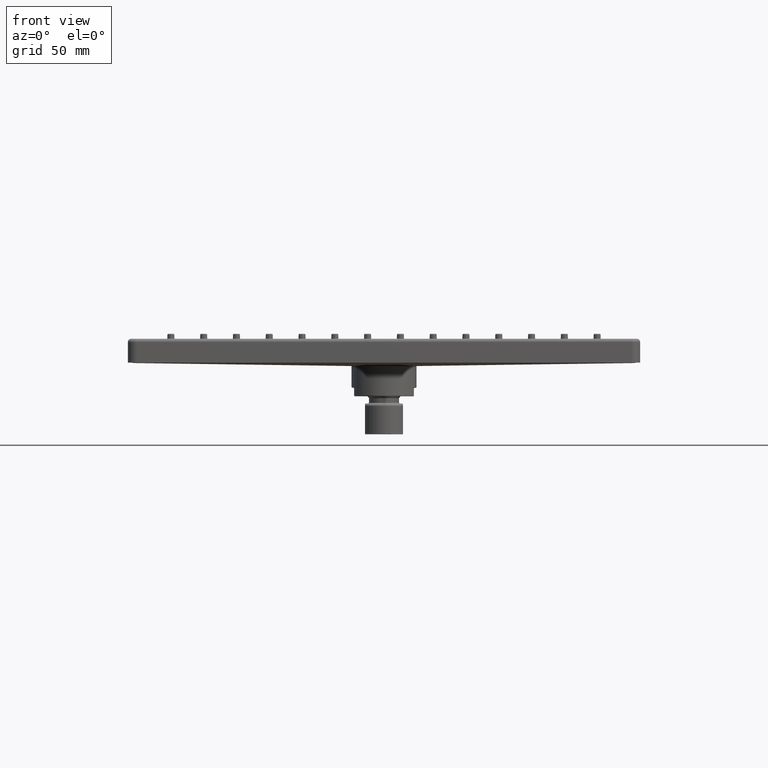
[diagram: clean part render]
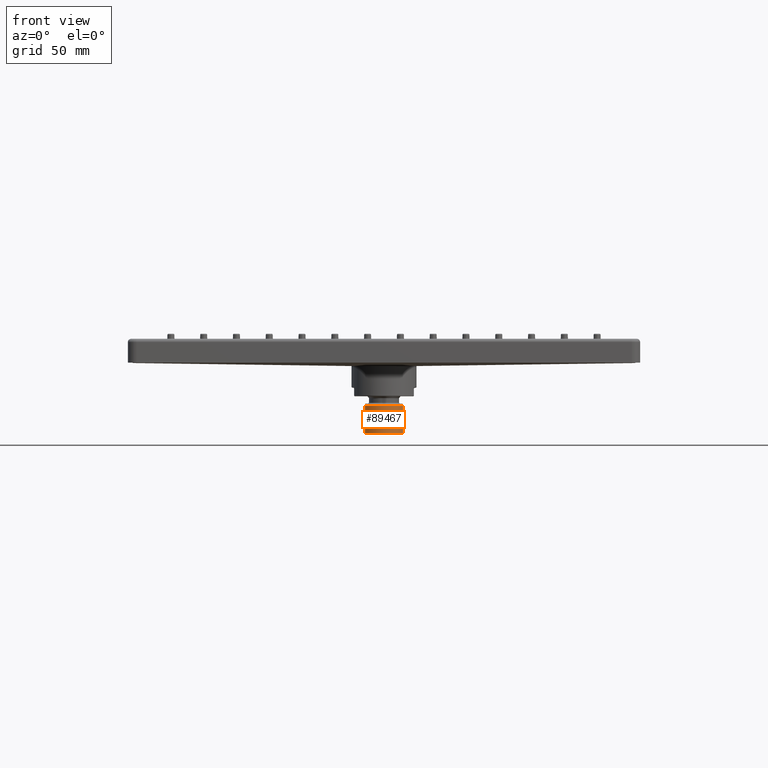
[diagram: same view with one face highlighted and labeled with its STEP entity id]
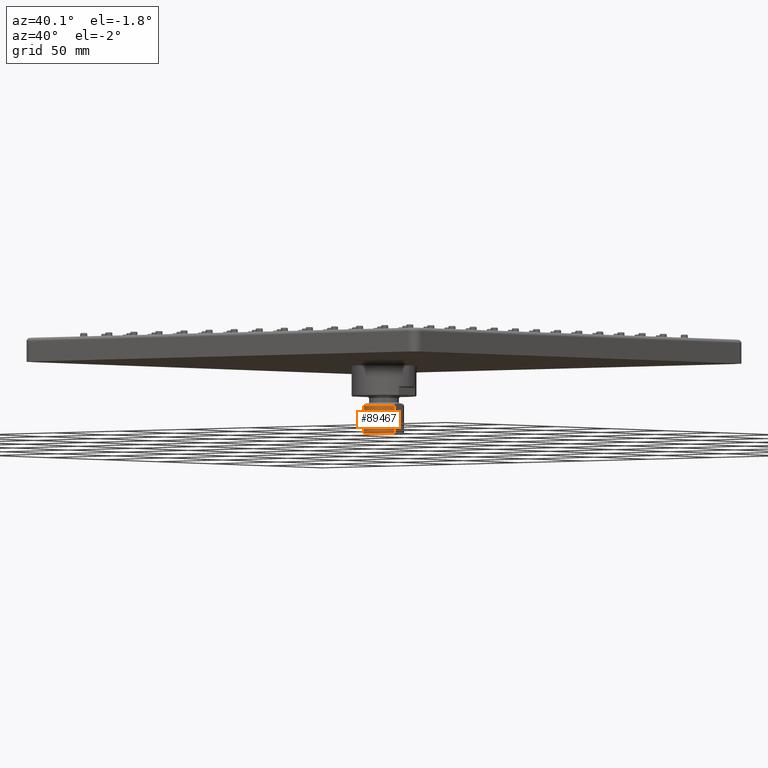
[diagram: same view with one face highlighted and labeled with its STEP entity id]
A machine part, front view. The second image highlights one B-rep face of the part: STEP entity #89467.
A second angle (auxiliary view) of the same face is appended — the face is thin or edge-on in the first view.
In plain terms, the highlighted cylindrical surface (edge-blend (fillet) strip) has radius 11.8 mm, axis along (0, 0, 1).
Its self-contained STEP definition (entity closure, byte-faithful):
#86739=CARTESIAN_POINT('',(0.E0,1.176976377953E0,0.E0));
#86740=DIRECTION('',(0.E0,-1.E0,0.E0));
#86741=DIRECTION('',(-9.406779661017E-1,0.E0,-3.393006986300E-1));
#86742=AXIS2_PLACEMENT_3D('',#86739,#86740,#86741);
#86764=DIRECTION('',(0.E0,-1.E0,0.E0));
#86765=VECTOR('',#86764,6.366614173228E-1);
#86766=CARTESIAN_POINT('',(-4.370078740157E-1,1.176976377953E0,
-1.576278836155E-1));
#86767=LINE('',#86766,#86765);
#86768=DIRECTION('',(0.E0,1.E0,0.E0));
#86769=VECTOR('',#86768,6.366614173228E-1);
#86770=CARTESIAN_POINT('',(4.370078740157E-1,5.403149606299E-1,
-1.576278836155E-1));
#86771=LINE('',#86770,#86769);
#86847=CARTESIAN_POINT('',(4.370078740157E-1,1.176976377953E0,
-1.576278836155E-1));
#86849=CARTESIAN_POINT('',(4.370078740157E-1,5.403149606299E-1,
-1.576278836155E-1));
#86893=CARTESIAN_POINT('',(0.E0,5.403149606299E-1,0.E0));
#86894=DIRECTION('',(0.E0,1.E0,0.E0));
#86895=DIRECTION('',(9.406779661017E-1,0.E0,-3.393006986300E-1));
#86896=AXIS2_PLACEMENT_3D('',#86893,#86894,#86895);
#89400=VERTEX_POINT('',#86849);
#89401=CARTESIAN_POINT('',(-4.370078740157E-1,5.403149606299E-1,
-1.576278836155E-1));
#89402=VERTEX_POINT('',#89401);
#89406=CARTESIAN_POINT('',(-4.370078740157E-1,1.176976377953E0,
-1.576278836155E-1));
#89407=VERTEX_POINT('',#89406);
#89410=VERTEX_POINT('',#86847);
#89453=CARTESIAN_POINT('',(0.E0,1.271062992126E0,0.E0));
#89454=DIRECTION('',(0.E0,-1.E0,0.E0));
#89455=DIRECTION('',(-1.E0,0.E0,0.E0));
#89456=AXIS2_PLACEMENT_3D('',#89453,#89454,#89455);
#89457=CYLINDRICAL_SURFACE('',#89456,4.645669291339E-1);
#89458=ORIENTED_EDGE('',*,*,#89442,.F.);
#89460=ORIENTED_EDGE('',*,*,#89459,.T.);
#89462=ORIENTED_EDGE('',*,*,#89461,.F.);
#89464=ORIENTED_EDGE('',*,*,#89463,.T.);
#89465=EDGE_LOOP('',(#89458,#89460,#89462,#89464));
#89466=FACE_OUTER_BOUND('',#89465,.F.);
#89467=ADVANCED_FACE('',(#89466),#89457,.T.);
#86743=CIRCLE('',#86742,4.645669291339E-1);
#86897=CIRCLE('',#86896,4.645669291339E-1);
#89442=EDGE_CURVE('',#89407,#89410,#86743,.T.);
#89459=EDGE_CURVE('',#89407,#89402,#86767,.T.);
#89461=EDGE_CURVE('',#89400,#89402,#86897,.T.);
#89463=EDGE_CURVE('',#89400,#89410,#86771,.T.);